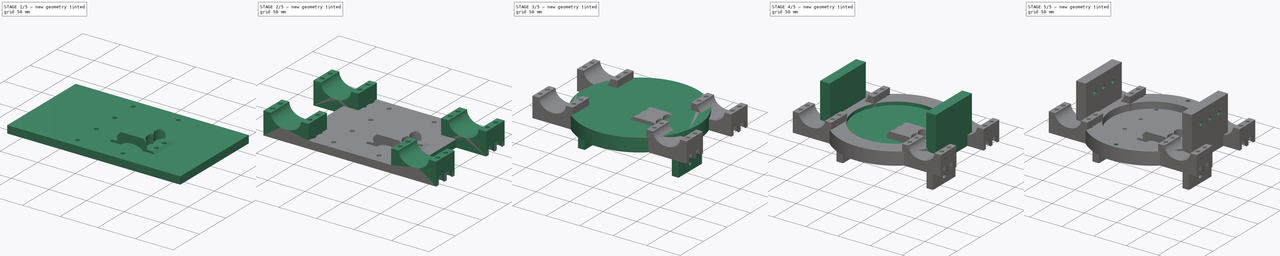
[diagram: build sequence overview — one tinted view per stage of 5, left to right]
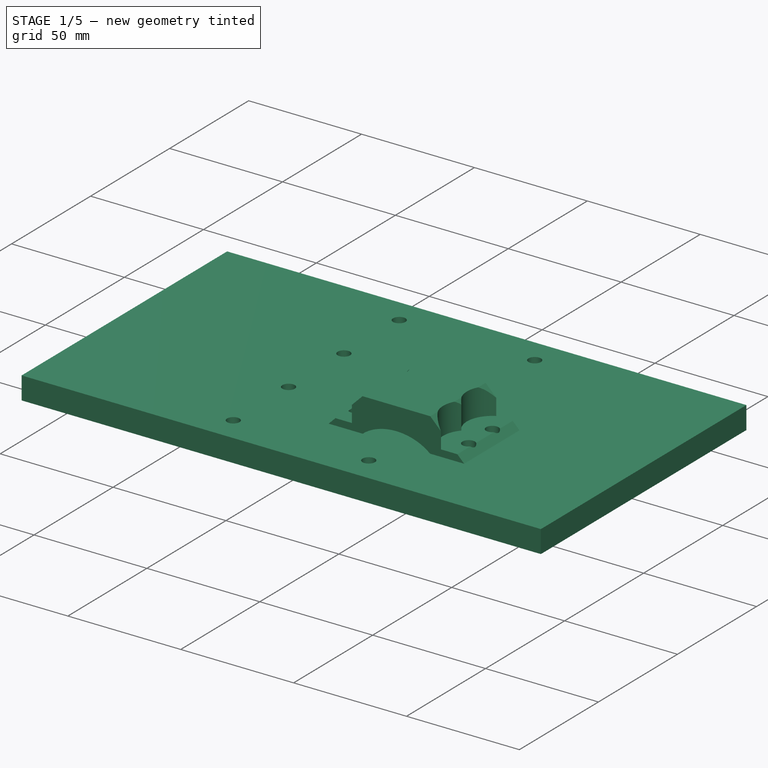
[diagram: stage 1 of 5 — iso view after this stage's code; geometry added in this stage tinted green]
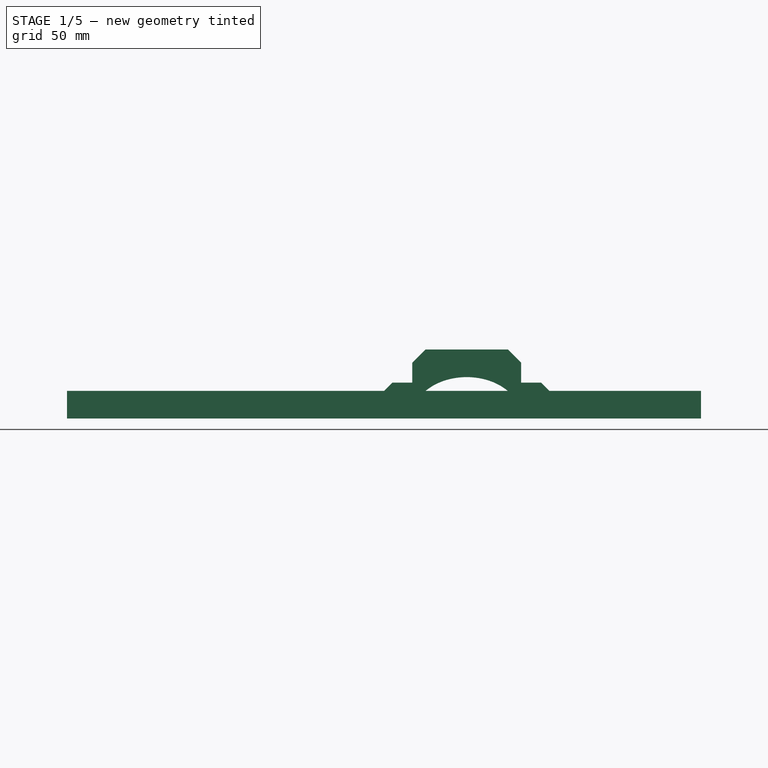
[diagram: stage 1 of 5 — front view after this stage's code; geometry added in this stage tinted green]
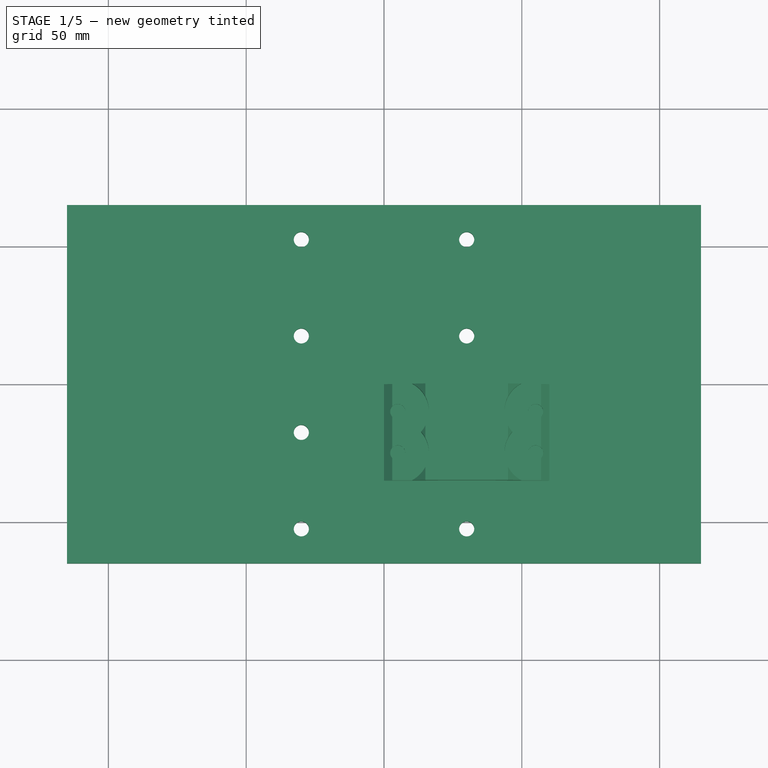
[diagram: stage 1 of 5 — top view after this stage's code; geometry added in this stage tinted green]
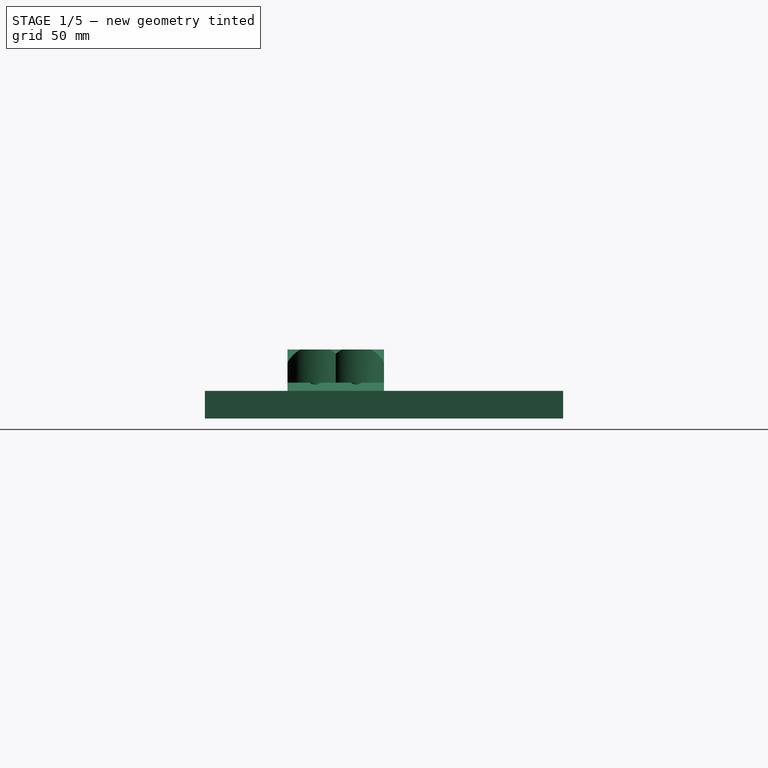
[diagram: stage 1 of 5 — right view after this stage's code; geometry added in this stage tinted green]
FCSTD DOCUMENT  (FreeCAD 1.0R39109 (Git))
Label: HeadlightMount
License: All rights reserved
LicenseURL: https://en.wikipedia.org/wiki/All_rights_reserved
objects: Sketcher::SketchObject×20, PartDesign::Hole×11, PartDesign::Pad×7, PartDesign::Body×5, PartDesign::SubtractiveCylinder×3, PartDesign::AdditiveCylinder×2, PartDesign::Pocket×2, App::DocumentObjectGroup×1
note: 120 computed .brp shape members not serialized (recipe doc carries the construction recipe); baked Part::Feature solids carry a one-line shape summary decoded from their .brp

FEATURE [PartDesign::Body] Body056  label="HeadlightHolderP3"
  AllowCompound = false
  Group = -> [Sketch043,Pad021,Sketch042,Hole020,Sketch044,Pad022,Sketch045,Hole021,Sketch046,Hole022,Sketch047,Pad023,Sketch048,Hole023]
  Origin = -> Origin057
  Tip = -> Hole023
FEATURE [App::DocumentObjectGroup] Group019  label="HeadlightMount"
  Group = -> [Body054,Body055,Body056]
FEATURE [Sketcher::SketchObject] Sketch
  ArcFitTolerance = 1e-06
  AttachmentSupport = -> [XY_Plane]
  FullyConstrained = false
  MakeInternals = false
  MapMode = 5
  sketch-geometry (4):
    g0: LineSegment StartX=-115 StartY=65 StartZ=0 EndX=-115 EndY=-65 EndZ=0
    g1: LineSegment StartX=-115 StartY=-65 StartZ=0 EndX=115 EndY=-65 EndZ=0
    g2: LineSegment StartX=115 StartY=-65 StartZ=0 EndX=115 EndY=65 EndZ=0
    g3: LineSegment StartX=115 StartY=65 StartZ=0 EndX=-115 EndY=65 EndZ=0
  constraints (8):
    c: Coincident(g0,g1)
    c: Coincident(g1,g2)
    c: Coincident(g2,g3)
    c: Coincident(g3,g0)
    c: Vertical(g0)
    c: Vertical(g2)
    c: Horizontal(g1)
    c: Horizontal(g3)
FEATURE [PartDesign::Pad] Pad
  Direction = (0,0,1)
  Length = 10
  Length2 = 10
  Profile = -> Sketch
  ReferenceAxis = -> Sketch [N_Axis]
  Refine = true
  Suppressed = false
  Type = 0
FEATURE [Sketcher::SketchObject] Sketch049
  ArcFitTolerance = 1e-06
  AttachmentSupport = -> [XY_Plane]
  FullyConstrained = false
  MakeInternals = false
  MapMode = 5
  sketch-geometry (8):
    g0: Circle CenterX=-30 CenterY=52.5 CenterZ=0 NormalX=0 NormalY=0 NormalZ=1 AngleXU=0 Radius=2.58214
    g1: Circle CenterX=-30 CenterY=17.5 CenterZ=0 NormalX=0 NormalY=0 NormalZ=1 AngleXU=0 Radius=2.63871
    g2: Circle CenterX=-30 CenterY=-17.5 CenterZ=0 NormalX=0 NormalY=0 NormalZ=1 AngleXU=0 Radius=2.65624
    g3: Circle CenterX=-30 CenterY=-52.5 CenterZ=0 NormalX=0 NormalY=0 NormalZ=1 AngleXU=0 Radius=2.60319
    g4: Circle CenterX=30 CenterY=-52.5 CenterZ=0 NormalX=0 NormalY=0 NormalZ=1 AngleXU=0 Radius=2.6842
    g5: Circle CenterX=30 CenterY=-17.5 CenterZ=0 NormalX=0 NormalY=0 NormalZ=1 AngleXU=0 Radius=2.58001
    g6: Circle CenterX=30 CenterY=17.5 CenterZ=0 NormalX=0 NormalY=0 NormalZ=1 AngleXU=0 Radius=2.61131
    g7: Circle CenterX=30 CenterY=52.5 CenterZ=0 NormalX=0 NormalY=0 NormalZ=1 AngleXU=0 Radius=2.75505
FEATURE [PartDesign::Hole] Hole
  BaseFeature = -> Pad
  CustomThreadClearance = 0
  Depth = 25
  DepthType = 0
  Diameter = 5.5
  DrillForDepth = false
  DrillPoint = 1
  DrillPointAngle = 118
  HoleCutCountersinkAngle = 90
  HoleCutCustomValues = false
  HoleCutDepth = 0
  HoleCutDiameter = 10.1
  HoleCutType = 0
  ModelThread = false
  Profile = -> Sketch049
  Refine = true
  Reversed = true
  Suppressed = false
  Tapered = false
  TaperedAngle = 90
  ThreadClass = 0
  ThreadDepth = 25
  ThreadDepthType = 0
  ThreadDirection = 0
  ThreadFit = 0
  ThreadSize = 13
  ThreadType = 1
  Threaded = false
  UseCustomThreadClearance = false
FEATURE [PartDesign::Body] Body  label="ForkMountClamp"
  AllowCompound = false
  Group = -> [Sketch,Pad,Sketch049,Hole,Sketch050,Sketch051,Pad024,Sketch052,Hole024,Pocket]
  Origin = -> Origin
  Placement = pos=(0,0,10) rot=(0,0,1;0rad)
  Tip = -> Pocket
FEATURE [Sketcher::SketchObject] Sketch054
  ArcFitTolerance = 1e-06
  AttachmentSupport = -> [XZ_Plane058]
  FullyConstrained = false
  MakeInternals = false
  MapMode = 5
  Placement = pos=(0,0,0) rot=(1,0,0;1.5708rad)
  sketch-geometry (15):
    g0: LineSegment StartX=60 StartY=0 StartZ=0 EndX=60 EndY=25 EndZ=0
    g1: LineSegment StartX=60 StartY=25 StartZ=0 EndX=0 EndY=25 EndZ=0
    g2: LineSegment StartX=0 StartY=0 StartZ=0 EndX=0 EndY=25 EndZ=0
    g3: ArcOfEllipse CenterX=30 CenterY=0 CenterZ=0 NormalX=0 NormalY=0 NormalZ=1 MajorRadius=20 MinorRadius=15 AngleXU=-3.14159 StartAngle=3.14159 EndAngle=4.71239
    g4: LineSegment [constr] StartX=10 StartY=0 StartZ=0 EndX=50 EndY=0 EndZ=0
    g5: GeomPoint [constr] X=16.7712 Y=0 Z=0
    g6: GeomPoint [constr] X=43.2288 Y=0 Z=0
    g7: ArcOfEllipse CenterX=30 CenterY=0 CenterZ=0 NormalX=0 NormalY=0 NormalZ=1 MajorRadius=20 MinorRadius=15 AngleXU=-3.14159 StartAngle=4.71239 EndAngle=6.28318
    g8: LineSegment [constr] StartX=10 StartY=0 StartZ=0 EndX=50 EndY=0 EndZ=0
    g9: GeomPoint [constr] X=16.7712 Y=0 Z=0
    g10: GeomPoint [constr] X=43.2288 Y=0 Z=0
    g11: LineSegment [constr] StartX=30 StartY=-15 StartZ=0 EndX=30 EndY=15 EndZ=0
    g12: LineSegment [constr] StartX=30 StartY=-15 StartZ=0 EndX=30 EndY=15 EndZ=0
    g13: LineSegment StartX=10 StartY=4.60769e-06 StartZ=0 EndX=0 EndY=0 EndZ=0
    g14: LineSegment StartX=50 StartY=-9.80385e-06 StartZ=0 EndX=60 EndY=0 EndZ=0
  constraints (16):
    c: Coincident(g1,g0)
    c: Coincident(g2,g1)
    c: InternalAlignment(g4,g3)
    c: InternalAlignment(g11,g3)
    c: InternalAlignment(g5,g3)
    c: InternalAlignment(g6,g3)
    c: InternalAlignment(g8,g7)
    c: InternalAlignment(g12,g7)
    c: InternalAlignment(g9,g7)
    c: InternalAlignment(g10,g7)
    c: PointOnObject(g4,g7)
    c: Coincident(g7,g3)
    c: Coincident(g13,g7)
    c: Coincident(g13,g2)
    c: Coincident(g14,g3)
    c: Coincident(g14,g0)
FEATURE [PartDesign::Pad] Pad025
  Direction = (0,-1,2e-16)
  Length = 35
  Length2 = 10
  Placement = pos=(0,0,0) rot=(1,0,0;1.5708rad)
  Profile = -> Sketch054
  ReferenceAxis = -> Sketch054 [N_Axis]
  Refine = true
  Suppressed = false
  Type = 0
FEATURE [Sketcher::SketchObject] Sketch055
  ArcFitTolerance = 1e-06
  AttachmentOffset = pos=(0,0,25) rot=(0,0,1;0rad)
  AttachmentSupport = -> [XY_Plane059]
  FullyConstrained = false
  MakeInternals = false
  MapMode = 5
  Placement = pos=(0,0,25) rot=(0,0,1;0rad)
  sketch-geometry (4):
    g0: Circle CenterX=55 CenterY=-25 CenterZ=0 NormalX=0 NormalY=0 NormalZ=1 AngleXU=0 Radius=2.53144
    g1: Circle CenterX=55 CenterY=-10 CenterZ=0 NormalX=0 NormalY=0 NormalZ=1 AngleXU=0 Radius=3.07714
    g2: Circle CenterX=5 CenterY=-25 CenterZ=0 NormalX=0 NormalY=0 NormalZ=1 AngleXU=0 Radius=2.73792
    g3: Circle CenterX=5 CenterY=-10 CenterZ=0 NormalX=0 NormalY=0 NormalZ=1 AngleXU=0 Radius=2.81587
FEATURE [PartDesign::Hole] Hole025
  BaseFeature = -> Pad025
  CustomThreadClearance = 0
  Depth = 25
  DepthType = 0
  Diameter = 5.5
  DrillForDepth = false
  DrillPoint = 1
  DrillPointAngle = 118
  HoleCutCountersinkAngle = 90
  HoleCutCustomValues = false
  HoleCutDepth = 12
  HoleCutDiameter = 22.6
  HoleCutType = 1
  ModelThread = false
  Placement = pos=(0,0,0) rot=(1,0,0;1.5708rad)
  Profile = -> Sketch055
  Refine = true
  Suppressed = false
  Tapered = false
  TaperedAngle = 90
  ThreadClass = 0
  ThreadDepth = 25
  ThreadDepthType = 0
  ThreadDirection = 0
  ThreadFit = 0
  ThreadSize = 13
  ThreadType = 1
  Threaded = false
  UseCustomThreadClearance = false
FEATURE [Sketcher::SketchObject] Sketch056
  ArcFitTolerance = 1e-06
  AttachmentSupport = -> [XZ_Plane058]
  FullyConstrained = false
  MakeInternals = false
  MapMode = 5
  Placement = pos=(0,0,0) rot=(1,0,0;1.5708rad)
  sketch-geometry (6):
    g0: LineSegment StartX=60 StartY=10 StartZ=0 EndX=40 EndY=30 EndZ=0
    g1: LineSegment StartX=60 StartY=10 StartZ=0 EndX=60 EndY=30 EndZ=0
    g2: LineSegment StartX=60 StartY=30 StartZ=0 EndX=40 EndY=30 EndZ=0
    g3: LineSegment StartX=20 StartY=30 StartZ=0 EndX=0 EndY=10 EndZ=0
    g4: LineSegment StartX=0 StartY=10 StartZ=0 EndX=0 EndY=30 EndZ=0
    g5: LineSegment StartX=0 StartY=30 StartZ=0 EndX=20 EndY=30 EndZ=0
  constraints (11):
    c: Coincident(g1,g0)
    c: Vertical(g1)
    c: Coincident(g2,g1)
    c: Coincident(g2,g0)
    c: Horizontal(g2)
    c: PointOnObject(g3,g-2)
    c: Coincident(g4,g3)
    c: Vertical(g4)
    c: Coincident(g5,g4)
    c: Coincident(g5,g3)
    c: Horizontal(g5)
FEATURE [PartDesign::Pocket] Pocket001
  BaseFeature = -> Hole025
  Direction = (0,1,-2e-16)
  Length = 48
  Length2 = 5
  Placement = pos=(0,0,0) rot=(1,0,0;1.5708rad)
  Profile = -> Sketch056
  ReferenceAxis = -> Sketch056 [N_Axis]
  Refine = true
  Reversed = true
  Suppressed = false
  Type = 0
FEATURE [PartDesign::Body] Body057  label="BackClamp"
  AllowCompound = false
  Group = -> [Sketch054,Pad025,Sketch055,Hole025,Sketch056,Pocket001]
  Origin = -> Origin058
  Placement = pos=(55,65,40) rot=(0,0,1;0rad)
  Tip = -> Pocket001
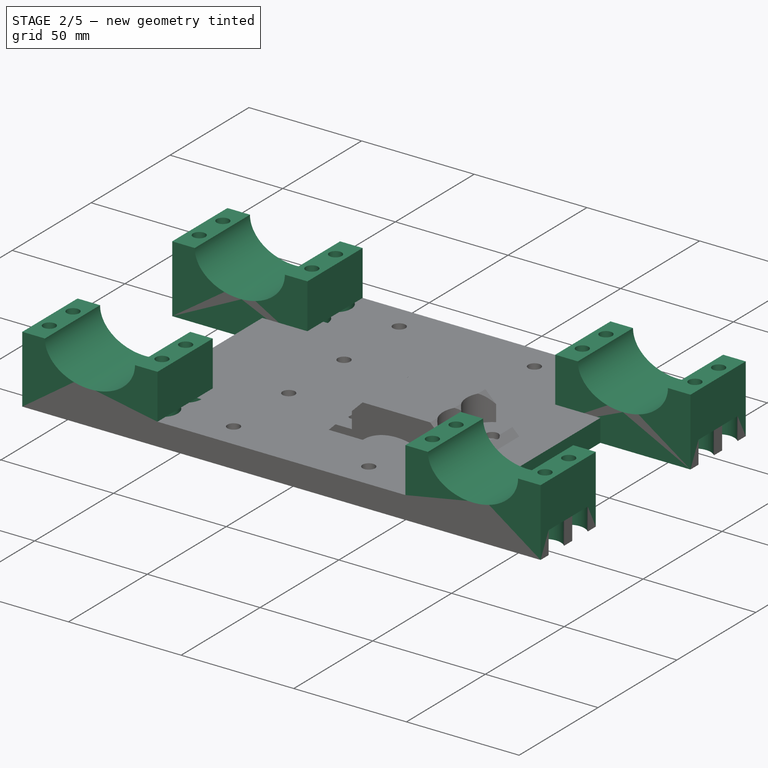
[diagram: stage 2 of 5 — iso view after this stage's code; geometry added in this stage tinted green]
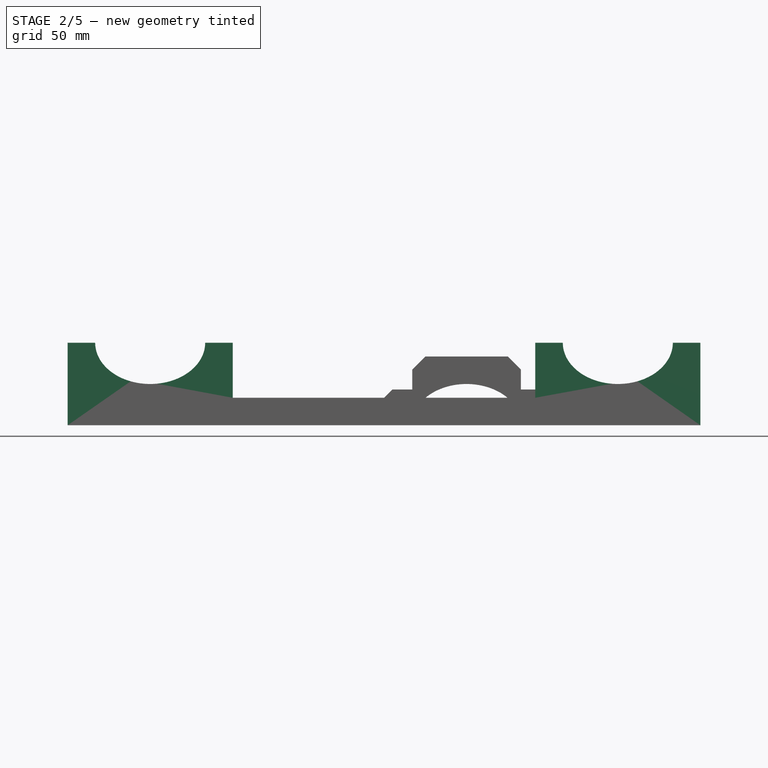
[diagram: stage 2 of 5 — front view after this stage's code; geometry added in this stage tinted green]
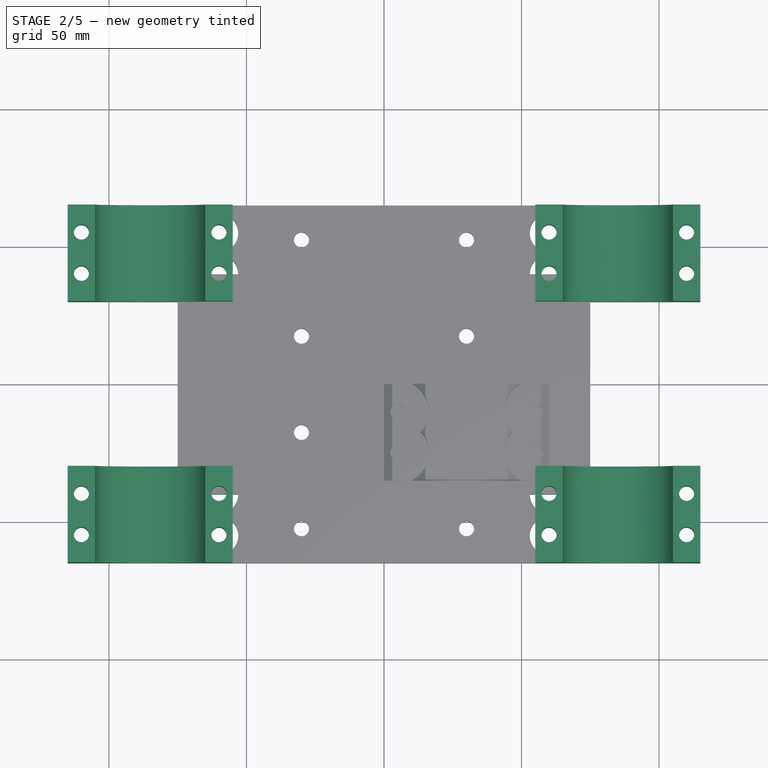
[diagram: stage 2 of 5 — top view after this stage's code; geometry added in this stage tinted green]
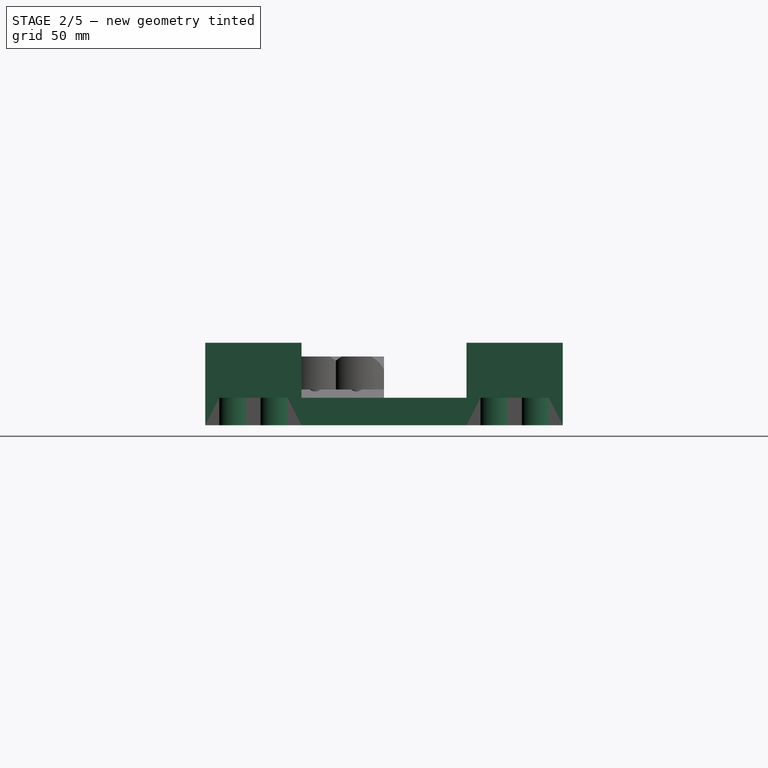
[diagram: stage 2 of 5 — right view after this stage's code; geometry added in this stage tinted green]
FEATURE [PartDesign::Body] Body055  label="HeadlightHolderP2"
  AllowCompound = false
  Group = -> [Cylinder057,Cylinder058,Sketch041,Hole019]
  Origin = -> Origin056
  Placement = pos=(0,0,-105) rot=(0,0,1;0rad)
  Tip = -> Hole019
FEATURE [Sketcher::SketchObject] Sketch042  label="FronHoleFootprint001"
  ArcFitTolerance = 0
  FullyConstrained = false
  MakeInternals = false
  MapMode = 5
  sketch-geometry (8):
    g0: Circle CenterX=-30 CenterY=52.5 CenterZ=0 NormalX=0 NormalY=0 NormalZ=1 AngleXU=0 Radius=2.75
    g1: Circle CenterX=30 CenterY=52.5 CenterZ=0 NormalX=0 NormalY=0 NormalZ=1 AngleXU=0 Radius=2.75
    g2: Circle CenterX=-30 CenterY=17.5 CenterZ=0 NormalX=0 NormalY=0 NormalZ=1 AngleXU=0 Radius=2.75
    g3: Circle CenterX=30 CenterY=17.5 CenterZ=0 NormalX=0 NormalY=0 NormalZ=1 AngleXU=0 Radius=2.75
    g4: Circle CenterX=-30 CenterY=-17.5 CenterZ=0 NormalX=0 NormalY=0 NormalZ=1 AngleXU=0 Radius=2.75
    g5: Circle CenterX=30 CenterY=-17.5 CenterZ=0 NormalX=0 NormalY=0 NormalZ=1 AngleXU=0 Radius=2.75
    g6: Circle CenterX=-30 CenterY=-52.5 CenterZ=0 NormalX=0 NormalY=0 NormalZ=1 AngleXU=0 Radius=2.75
    g7: Circle CenterX=30 CenterY=-52.5 CenterZ=0 NormalX=0 NormalY=0 NormalZ=1 AngleXU=0 Radius=2.75
  constraints (9):
    c: Diameter(g0) = 5.5
    c: Equal(g0, g1-g7) x7
    c: DistanceY(g2,g0) = 35
    c: DistanceY(g4,g2) = 35
    c: DistanceY(g6,g4) = 35
    c: DistanceY(g3,g1) = 35
    c: DistanceY(g5,g3) = 35
    c: DistanceY(g7,g5) = 35
    c: DistanceX(g6,g7) = 60
FEATURE [Sketcher::SketchObject] Sketch043
  ArcFitTolerance = 1e-06
  AttachmentSupport = -> [XY_Plane058]
  FullyConstrained = false
  MakeInternals = false
  MapMode = 5
  sketch-geometry (12):
    g0: LineSegment StartX=-75 StartY=40 StartZ=0 EndX=-75 EndY=-40 EndZ=0
    g1: LineSegment StartX=-75 StartY=-40 StartZ=0 EndX=75 EndY=-40 EndZ=0
    g2: LineSegment StartX=75 StartY=-40 StartZ=0 EndX=75 EndY=40 EndZ=0
    g3: LineSegment StartX=75 StartY=40 StartZ=0 EndX=-75 EndY=40 EndZ=0
    g4: LineSegment StartX=-40 StartY=65 StartZ=0 EndX=-40 EndY=40 EndZ=0
    g5: LineSegment StartX=-40 StartY=40 StartZ=0 EndX=40 EndY=40 EndZ=0
    g6: LineSegment StartX=40 StartY=40 StartZ=0 EndX=40 EndY=65 EndZ=0
    g7: LineSegment StartX=40 StartY=65 StartZ=0 EndX=-40 EndY=65 EndZ=0
    g8: LineSegment StartX=-40 StartY=-40 StartZ=0 EndX=-40 EndY=-65 EndZ=0
    g9: LineSegment StartX=-40 StartY=-65 StartZ=0 EndX=40 EndY=-65 EndZ=0
    g10: LineSegment StartX=40 StartY=-65 StartZ=0 EndX=40 EndY=-40 EndZ=0
    g11: LineSegment StartX=40 StartY=-40 StartZ=0 EndX=-40 EndY=-40 EndZ=0
  constraints (25):
    c: Coincident(g0,g1)
    c: Coincident(g1,g2)
    c: Coincident(g2,g3)
    c: Coincident(g3,g0)
    c: Vertical(g0)
    c: Vertical(g2)
    c: Horizontal(g1)
    c: Horizontal(g3)
    c: Coincident(g4,g5)
    c: Coincident(g5,g6)
    c: Coincident(g6,g7)
    c: Coincident(g7,g4)
    c: Vertical(g4)
    c: Vertical(g6)
    c: Horizontal(g5)
    c: Horizontal(g7)
    c: Coincident(g8,g9)
    c: Coincident(g9,g10)
    c: Coincident(g10,g11)
    c: Coincident(g11,g8)
    c: Vertical(g8)
    c: Vertical(g10)
    c: Horizontal(g9)
    c: Horizontal(g11)
    c: PointOnObject(g8,g1)
FEATURE [PartDesign::Pad] Pad021
  Direction = (0,0,1)
  Length = 10
  Length2 = 10
  Profile = -> Sketch043
  ReferenceAxis = -> Sketch043 [N_Axis]
  Refine = true
  Suppressed = false
  Type = 0
FEATURE [PartDesign::Hole] Hole020
  BaseFeature = -> Pad021
  CustomThreadClearance = 0
  Depth = 25
  DepthType = 0
  Diameter = 5.8
  DrillForDepth = false
  DrillPoint = 1
  DrillPointAngle = 118
  HoleCutCountersinkAngle = 90
  HoleCutCustomValues = false
  HoleCutDepth = 5.4
  HoleCutDiameter = 11.2
  HoleCutType = 1
  ModelThread = false
  Profile = -> Sketch042
  Refine = true
  Reversed = true
  Suppressed = false
  Tapered = false
  TaperedAngle = 90
  ThreadClass = 0
  ThreadDepth = 25
  ThreadDepthType = 0
  ThreadDirection = 0
  ThreadFit = 2
  ThreadSize = 13
  ThreadType = 1
  Threaded = false
  UseCustomThreadClearance = false
FEATURE [Sketcher::SketchObject] Sketch050
  ArcFitTolerance = 1e-06
  AttachmentSupport = -> [XY_Plane]
  FullyConstrained = false
  MakeInternals = false
  MapMode = 5
  sketch-geometry (8):
    g0: LineSegment StartX=-115 StartY=30 StartZ=0 EndX=-115 EndY=-30 EndZ=0
    g1: LineSegment StartX=-115 StartY=-30 StartZ=0 EndX=-50 EndY=-30 EndZ=0
    g2: LineSegment StartX=-50 StartY=-30 StartZ=0 EndX=-50 EndY=30 EndZ=0
    g3: LineSegment StartX=-50 StartY=30 StartZ=0 EndX=-115 EndY=30 EndZ=0
    g4: LineSegment StartX=50 StartY=30 StartZ=0 EndX=50 EndY=-30 EndZ=0
    g5: LineSegment StartX=50 StartY=-30 StartZ=0 EndX=115 EndY=-30 EndZ=0
    g6: LineSegment StartX=115 StartY=-30 StartZ=0 EndX=115 EndY=30 EndZ=0
    g7: LineSegment StartX=115 StartY=30 StartZ=0 EndX=50 EndY=30 EndZ=0
  constraints (16):
    c: Coincident(g0,g1)
    c: Coincident(g1,g2)
    c: Coincident(g2,g3)
    c: Coincident(g3,g0)
    c: Vertical(g0)
    c: Vertical(g2)
    c: Horizontal(g1)
    c: Horizontal(g3)
    c: Coincident(g4,g5)
    c: Coincident(g5,g6)
    c: Coincident(g6,g7)
    c: Coincident(g7,g4)
    c: Vertical(g4)
    c: Vertical(g6)
    c: Horizontal(g5)
    c: Horizontal(g7)
FEATURE [Sketcher::SketchObject] Sketch051
  ArcFitTolerance = 1e-06
  AttachmentOffset = pos=(0,0,-65) rot=(0,0,1;0rad)
  AttachmentSupport = -> [XZ_Plane]
  FullyConstrained = false
  MakeInternals = false
  MapMode = 5
  Placement = pos=(0,65,-1.44e-14) rot=(1,0,0;1.5708rad)
  sketch-geometry (30):
    g0: LineSegment StartX=-115 StartY=30 StartZ=0 EndX=-115 EndY=10 EndZ=0
    g1: LineSegment StartX=-115 StartY=10 StartZ=0 EndX=-55 EndY=10 EndZ=0
    g2: LineSegment StartX=-55 StartY=30 StartZ=0 EndX=-55 EndY=10 EndZ=0
    g3: ArcOfEllipse CenterX=-85 CenterY=30 CenterZ=0 NormalX=0 NormalY=0 NormalZ=1 MajorRadius=20 MinorRadius=15 AngleXU=0 StartAngle=3.14159 EndAngle=4.71239
    g4: LineSegment [constr] StartX=-65 StartY=30 StartZ=0 EndX=-105 EndY=30 EndZ=0
    g5: GeomPoint [constr] X=-71.7712 Y=30 Z=0
    g6: GeomPoint [constr] X=-98.2288 Y=30 Z=0
    g7: ArcOfEllipse CenterX=-85 CenterY=30 CenterZ=0 NormalX=0 NormalY=0 NormalZ=1 MajorRadius=20 MinorRadius=15 AngleXU=0 StartAngle=4.71239 EndAngle=6.28318
    g8: LineSegment [constr] StartX=-65 StartY=30 StartZ=0 EndX=-105 EndY=30 EndZ=0
    g9: GeomPoint [constr] X=-71.7712 Y=30 Z=0
    g10: GeomPoint [constr] X=-98.2288 Y=30 Z=0
    g11: LineSegment [constr] StartX=-85 StartY=45 StartZ=0 EndX=-85 EndY=15 EndZ=0
    g12: LineSegment [constr] StartX=-85 StartY=45 StartZ=0 EndX=-85 EndY=15 EndZ=0
    g13: LineSegment StartX=-65 StartY=30 StartZ=0 EndX=-55 EndY=30 EndZ=0
    g14: LineSegment StartX=-105 StartY=30 StartZ=0 EndX=-115 EndY=30 EndZ=0
    g15: LineSegment StartX=55 StartY=30 StartZ=0 EndX=55 EndY=10 EndZ=0
    g16: LineSegment StartX=55 StartY=10 StartZ=0 EndX=115 EndY=10 EndZ=0
    g17: LineSegment StartX=115 StartY=30 StartZ=0 EndX=115 EndY=10 EndZ=0
    g18: ArcOfEllipse CenterX=85 CenterY=30 CenterZ=0 NormalX=0 NormalY=0 NormalZ=1 MajorRadius=20 MinorRadius=15 AngleXU=0 StartAngle=3.14159 EndAngle=4.71239
    g19: LineSegment [constr] StartX=105 StartY=30 StartZ=0 EndX=65 EndY=30 EndZ=0
    g20: GeomPoint [constr] X=98.2288 Y=30 Z=0
    g21: GeomPoint [constr] X=71.7712 Y=30 Z=0
    g22: ArcOfEllipse CenterX=85 CenterY=30 CenterZ=0 NormalX=0 NormalY=0 NormalZ=1 MajorRadius=20 MinorRadius=15 AngleXU=0 StartAngle=4.71239 EndAngle=6.28318
    g23: LineSegment [constr] StartX=105 StartY=30 StartZ=0 EndX=65 EndY=30 EndZ=0
    g24: GeomPoint [constr] X=98.2288 Y=30 Z=0
    g25: GeomPoint [constr] X=71.7712 Y=30 Z=0
    g26: LineSegment [constr] StartX=85 StartY=45 StartZ=0 EndX=85 EndY=15 EndZ=0
    g27: LineSegment [constr] StartX=85 StartY=45 StartZ=0 EndX=85 EndY=15 EndZ=0
    g28: LineSegment StartX=105 StartY=30 StartZ=0 EndX=115 EndY=30 EndZ=0
    g29: LineSegment StartX=65 StartY=30 StartZ=0 EndX=55 EndY=30 EndZ=0
  constraints (42):
    c: Vertical(g0)
    c: Coincident(g1,g0)
    c: Horizontal(g1)
    c: Coincident(g2,g1)
    c: Vertical(g2)
    c: InternalAlignment(g4,g3)
    c: InternalAlignment(g11,g3)
    c: InternalAlignment(g5,g3)
    c: InternalAlignment(g6,g3)
    c: InternalAlignment(g8,g7)
    c: InternalAlignment(g12,g7)
    c: InternalAlignment(g9,g7)
    c: InternalAlignment(g10,g7)
    c: PointOnObject(g4,g7)
    c: Coincident(g7,g3)
    c: Coincident(g13,g7)
    c: Coincident(g13,g2)
    c: Horizontal(g13)
    c: Coincident(g14,g3)
    c: Coincident(g14,g0)
    c: Horizontal(g14)
    c: Vertical(g15)
    c: Coincident(g16,g15)
    c: Horizontal(g16)
    c: Coincident(g17,g16)
    c: Vertical(g17)
    c: InternalAlignment(g19,g18)
    c: InternalAlignment(g26,g18)
    c: InternalAlignment(g20,g18)
    c: InternalAlignment(g21,g18)
    c: InternalAlignment(g23,g22)
    c: InternalAlignment(g27,g22)
    c: InternalAlignment(g24,g22)
    c: InternalAlignment(g25,g22)
    c: PointOnObject(g19,g22)
    c: Coincident(g22,g18)
    c: Coincident(g28,g22)
    c: Coincident(g28,g17)
    c: Horizontal(g28)
    c: Coincident(g29,g18)
    c: Coincident(g29,g15)
    c: Horizontal(g29)
FEATURE [PartDesign::Pad] Pad024
  BaseFeature = -> Hole
  Direction = (0,-1,2e-16)
  Length = 130
  Length2 = 10
  Profile = -> Sketch051
  ReferenceAxis = -> Sketch051 [N_Axis]
  Refine = true
  Suppressed = false
  Type = 0
FEATURE [Sketcher::SketchObject] Sketch052
  ArcFitTolerance = 1e-06
  AttachmentSupport = -> [XY_Plane]
  FullyConstrained = false
  MakeInternals = false
  MapMode = 5
  sketch-geometry (16):
    g0: Circle CenterX=-60 CenterY=-55 CenterZ=0 NormalX=0 NormalY=0 NormalZ=1 AngleXU=0 Radius=2.53144
    g1: Circle CenterX=-60 CenterY=-40 CenterZ=0 NormalX=0 NormalY=0 NormalZ=1 AngleXU=0 Radius=3.07714
    g2: Circle CenterX=-110 CenterY=-55 CenterZ=0 NormalX=0 NormalY=0 NormalZ=1 AngleXU=0 Radius=2.73792
    g3: Circle CenterX=-110 CenterY=-40 CenterZ=0 NormalX=0 NormalY=0 NormalZ=1 AngleXU=0 Radius=2.81587
    g4: Circle CenterX=-60 CenterY=40 CenterZ=0 NormalX=0 NormalY=0 NormalZ=1 AngleXU=0 Radius=2.53144
    g5: Circle CenterX=-60 CenterY=55 CenterZ=0 NormalX=0 NormalY=0 NormalZ=1 AngleXU=0 Radius=3.07714
    g6: Circle CenterX=-110 CenterY=40 CenterZ=0 NormalX=0 NormalY=0 NormalZ=1 AngleXU=0 Radius=2.73792
    g7: Circle CenterX=-110 CenterY=55 CenterZ=0 NormalX=0 NormalY=0 NormalZ=1 AngleXU=0 Radius=2.81587
    g8: Circle CenterX=110 CenterY=-55 CenterZ=0 NormalX=0 NormalY=0 NormalZ=1 AngleXU=0 Radius=2.53144
    g9: Circle CenterX=110 CenterY=-40 CenterZ=0 NormalX=0 NormalY=0 NormalZ=1 AngleXU=0 Radius=3.07714
    g10: Circle CenterX=60 CenterY=-55 CenterZ=0 NormalX=0 NormalY=0 NormalZ=1 AngleXU=0 Radius=2.73792
    g11: Circle CenterX=60 CenterY=-40 CenterZ=0 NormalX=0 NormalY=0 NormalZ=1 AngleXU=0 Radius=2.81587
    g12: Circle CenterX=110 CenterY=40 CenterZ=0 NormalX=0 NormalY=0 NormalZ=1 AngleXU=0 Radius=2.53144
    g13: Circle CenterX=110 CenterY=55 CenterZ=0 NormalX=0 NormalY=0 NormalZ=1 AngleXU=0 Radius=3.07714
    g14: Circle CenterX=60 CenterY=40 CenterZ=0 NormalX=0 NormalY=0 NormalZ=1 AngleXU=0 Radius=2.73792
    g15: Circle CenterX=60 CenterY=55 CenterZ=0 NormalX=0 NormalY=0 NormalZ=1 AngleXU=0 Radius=2.81587
FEATURE [PartDesign::Hole] Hole024
  BaseFeature = -> Pad024
  CustomThreadClearance = 0
  Depth = 40
  DepthType = 0
  Diameter = 5.5
  DrillForDepth = false
  DrillPoint = 1
  DrillPointAngle = 118
  HoleCutCountersinkAngle = 90
  HoleCutCustomValues = false
  HoleCutDepth = 10
  HoleCutDiameter = 14
  HoleCutType = 1
  ModelThread = false
  Profile = -> Sketch052
  Refine = true
  Reversed = true
  Suppressed = false
  Tapered = false
  TaperedAngle = 90
  ThreadClass = 0
  ThreadDepth = 40
  ThreadDepthType = 0
  ThreadDirection = 0
  ThreadFit = 0
  ThreadSize = 13
  ThreadType = 1
  Threaded = false
  UseCustomThreadClearance = false
FEATURE [PartDesign::Pocket] Pocket
  BaseFeature = -> Hole024
  Direction = (0,0,-1)
  Length = 84
  Length2 = 5
  Profile = -> Sketch050
  ReferenceAxis = -> Sketch050 [N_Axis]
  Refine = true
  Reversed = true
  Suppressed = false
  Type = 0
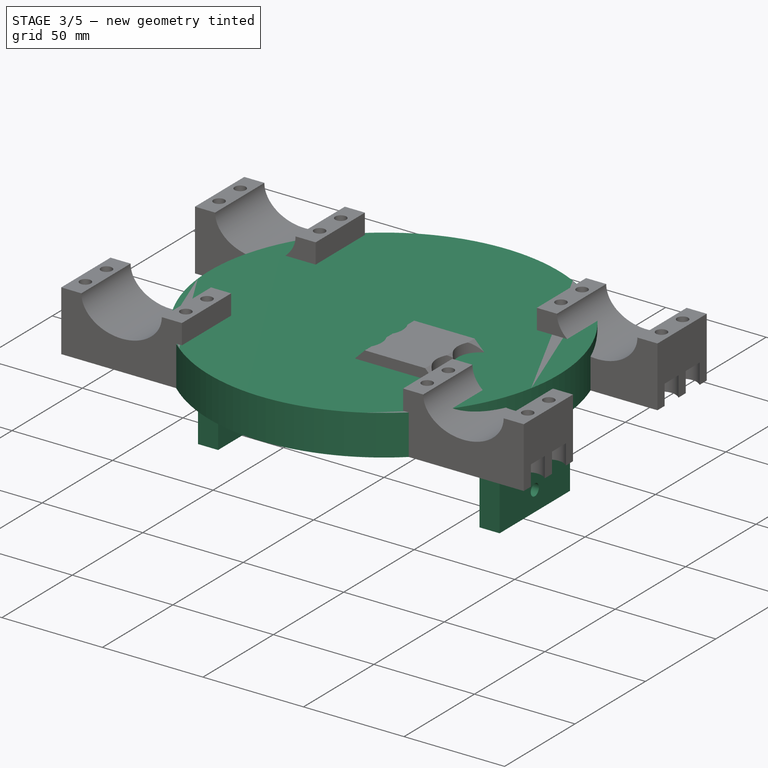
[diagram: stage 3 of 5 — iso view after this stage's code; geometry added in this stage tinted green]
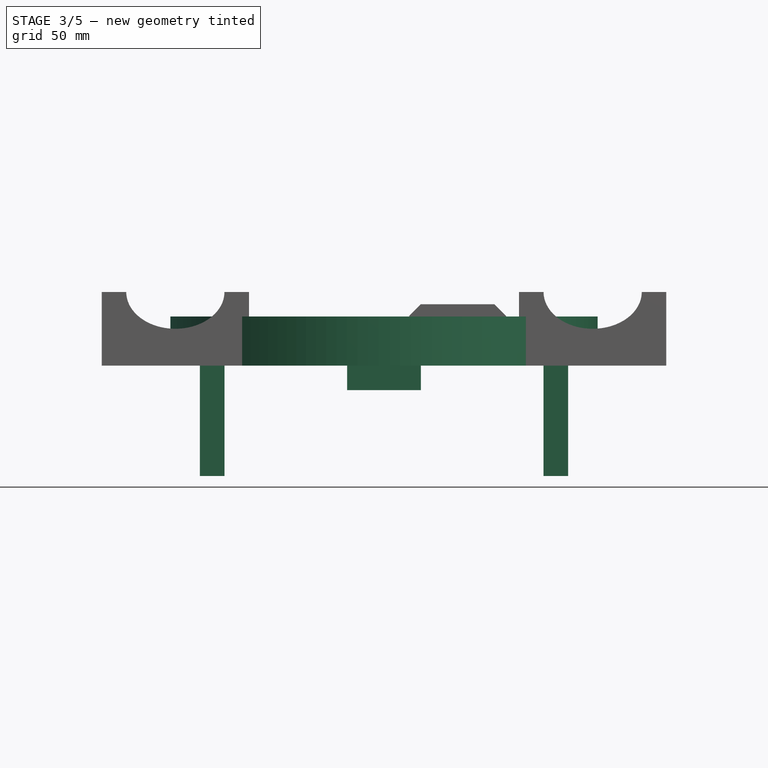
[diagram: stage 3 of 5 — front view after this stage's code; geometry added in this stage tinted green]
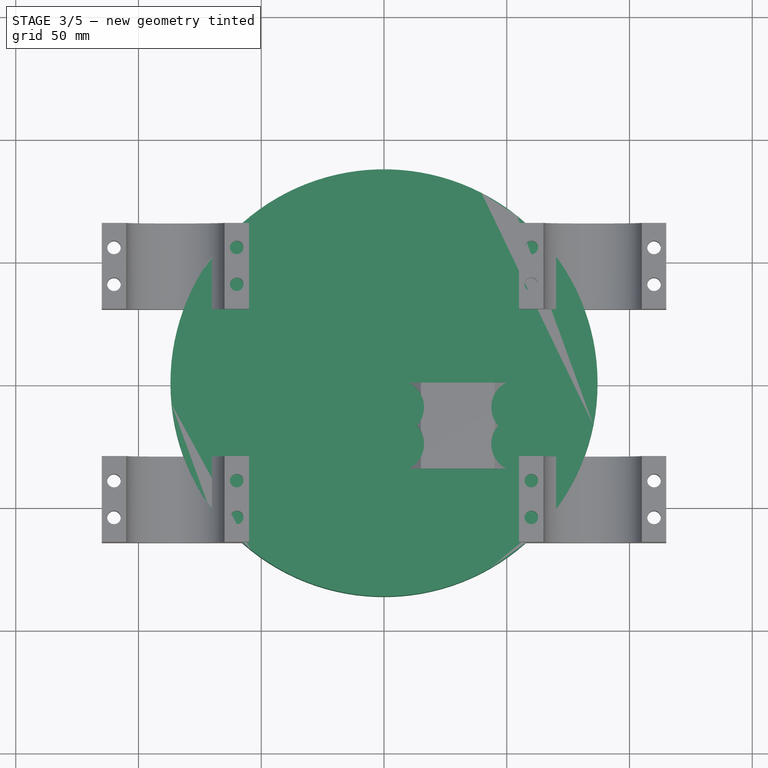
[diagram: stage 3 of 5 — top view after this stage's code; geometry added in this stage tinted green]
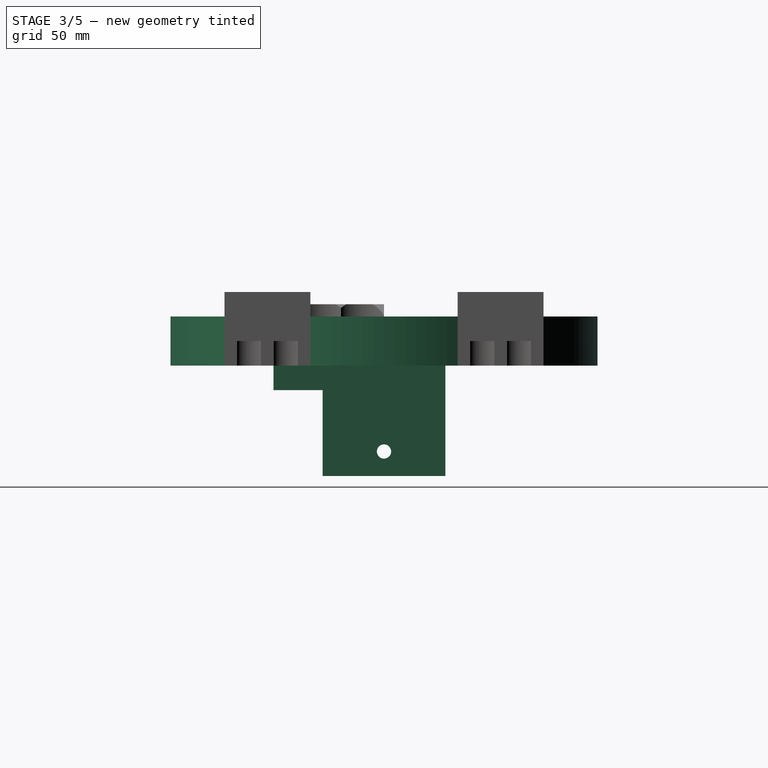
[diagram: stage 3 of 5 — right view after this stage's code; geometry added in this stage tinted green]
FEATURE [PartDesign::AdditiveCylinder] Cylinder054  label="HousingOuterRegion"
  Angle = 360
  AttacherType = Attacher::AttachEngine3D
  FirstAngle = 0
  Height = 20
  Radius = 87
  Refine = true
  SecondAngle = 0
  Suppressed = false
FEATURE [Sketcher::SketchObject] Sketch044
  ArcFitTolerance = 1e-06
  AttachmentSupport = -> [XY_Plane058]
  FullyConstrained = false
  MakeInternals = false
  MapMode = 5
  sketch-geometry (8):
    g0: LineSegment StartX=-65 StartY=-25 StartZ=0 EndX=-65 EndY=25 EndZ=0
    g1: LineSegment StartX=-65 StartY=25 StartZ=0 EndX=-75 EndY=25 EndZ=0
    g2: LineSegment StartX=-75 StartY=25 StartZ=0 EndX=-75 EndY=-25 EndZ=0
    g3: LineSegment StartX=-75 StartY=-25 StartZ=0 EndX=-65 EndY=-25 EndZ=0
    g4: LineSegment StartX=65 StartY=25 StartZ=0 EndX=65 EndY=-25 EndZ=0
    g5: LineSegment StartX=65 StartY=-25 StartZ=0 EndX=75 EndY=-25 EndZ=0
    g6: LineSegment StartX=75 StartY=-25 StartZ=0 EndX=75 EndY=25 EndZ=0
    g7: LineSegment StartX=75 StartY=25 StartZ=0 EndX=65 EndY=25 EndZ=0
  constraints (16):
    c: Coincident(g0,g1)
    c: Coincident(g1,g2)
    c: Coincident(g2,g3)
    c: Coincident(g3,g0)
    c: Vertical(g0)
    c: Vertical(g2)
    c: Horizontal(g1)
    c: Horizontal(g3)
    c: Coincident(g4,g5)
    c: Coincident(g5,g6)
    c: Coincident(g6,g7)
    c: Coincident(g7,g4)
    c: Vertical(g4)
    c: Vertical(g6)
    c: Horizontal(g5)
    c: Horizontal(g7)
FEATURE [PartDesign::Pad] Pad022
  BaseFeature = -> Hole020
  Direction = (0,0,1)
  Length = 45
  Length2 = 10
  Profile = -> Sketch044
  ReferenceAxis = -> Sketch044 [N_Axis]
  Refine = true
  Reversed = true
  Suppressed = false
  Type = 0
FEATURE [Sketcher::SketchObject] Sketch045
  ArcFitTolerance = 1e-06
  AttachmentSupport = -> [YZ_Plane057]
  FullyConstrained = false
  MakeInternals = false
  MapMode = 5
  Placement = pos=(0,0,0) rot=(0.57735,0.57735,0.57735;2.0944rad)
  sketch-geometry (1):
    g0: Circle CenterX=0 CenterY=-35 CenterZ=0 NormalX=0 NormalY=0 NormalZ=1 AngleXU=0 Radius=2.77182
  constraints (1):
    c: PointOnObject(g0,g-2)
FEATURE [PartDesign::Hole] Hole021
  BaseFeature = -> Pad022
  CustomThreadClearance = 0
  Depth = 416.066
  DepthType = 1
  Diameter = 5.8
  DrillForDepth = false
  DrillPoint = 1
  DrillPointAngle = 118
  HoleCutCountersinkAngle = 90
  HoleCutCustomValues = false
  HoleCutDepth = 0
  HoleCutDiameter = 6.1
  HoleCutType = 0
  ModelThread = false
  Profile = -> Sketch045
  Refine = true
  Suppressed = false
  Tapered = false
  TaperedAngle = 90
  ThreadClass = 0
  ThreadDepth = 416.066
  ThreadDepthType = 0
  ThreadDirection = 0
  ThreadFit = 2
  ThreadSize = 13
  ThreadType = 1
  Threaded = false
  UseCustomThreadClearance = false
FEATURE [Sketcher::SketchObject] Sketch046
  ArcFitTolerance = 1e-06
  AttachmentSupport = -> [YZ_Plane057]
  FullyConstrained = false
  MakeInternals = false
  MapMode = 5
  Placement = pos=(0,0,0) rot=(0.57735,0.57735,0.57735;2.0944rad)
  sketch-geometry (1):
    g0: Circle CenterX=0 CenterY=-35 CenterZ=0 NormalX=0 NormalY=0 NormalZ=1 AngleXU=0 Radius=2.77182
  constraints (1):
    c: PointOnObject(g0,g-2)
FEATURE [PartDesign::Hole] Hole022
  BaseFeature = -> Hole021
  CustomThreadClearance = 0
  Depth = 416.066
  DepthType = 1
  Diameter = 5.8
  DrillForDepth = false
  DrillPoint = 1
  DrillPointAngle = 118
  HoleCutCountersinkAngle = 90
  HoleCutCustomValues = false
  HoleCutDepth = 0
  HoleCutDiameter = 6.1
  HoleCutType = 0
  ModelThread = false
  Profile = -> Sketch046
  Refine = true
  Reversed = true
  Suppressed = false
  Tapered = false
  TaperedAngle = 90
  ThreadClass = 0
  ThreadDepth = 416.066
  ThreadDepthType = 0
  ThreadDirection = 0
  ThreadFit = 2
  ThreadSize = 13
  ThreadType = 1
  Threaded = false
  UseCustomThreadClearance = false
FEATURE [Sketcher::SketchObject] Sketch047
  ArcFitTolerance = 1e-06
  AttachmentSupport = -> [XY_Plane058]
  FullyConstrained = false
  MakeInternals = false
  MapMode = 5
  sketch-geometry (4):
    g0: LineSegment StartX=-15 StartY=-45 StartZ=0 EndX=15 EndY=-45 EndZ=0
    g1: LineSegment StartX=15 StartY=-45 StartZ=0 EndX=15 EndY=-25 EndZ=0
    g2: LineSegment StartX=15 StartY=-25 StartZ=0 EndX=-15 EndY=-25 EndZ=0
    g3: LineSegment StartX=-15 StartY=-25 StartZ=0 EndX=-15 EndY=-45 EndZ=0
  constraints (8):
    c: Coincident(g0,g1)
    c: Coincident(g1,g2)
    c: Coincident(g2,g3)
    c: Coincident(g3,g0)
    c: Horizontal(g0)
    c: Horizontal(g2)
    c: Vertical(g1)
    c: Vertical(g3)
FEATURE [PartDesign::Pad] Pad023
  BaseFeature = -> Hole022
  Direction = (0,0,1)
  Length = 10
  Length2 = 10
  Profile = -> Sketch047
  ReferenceAxis = -> Sketch047 [N_Axis]
  Refine = true
  Reversed = true
  Suppressed = false
  Type = 0
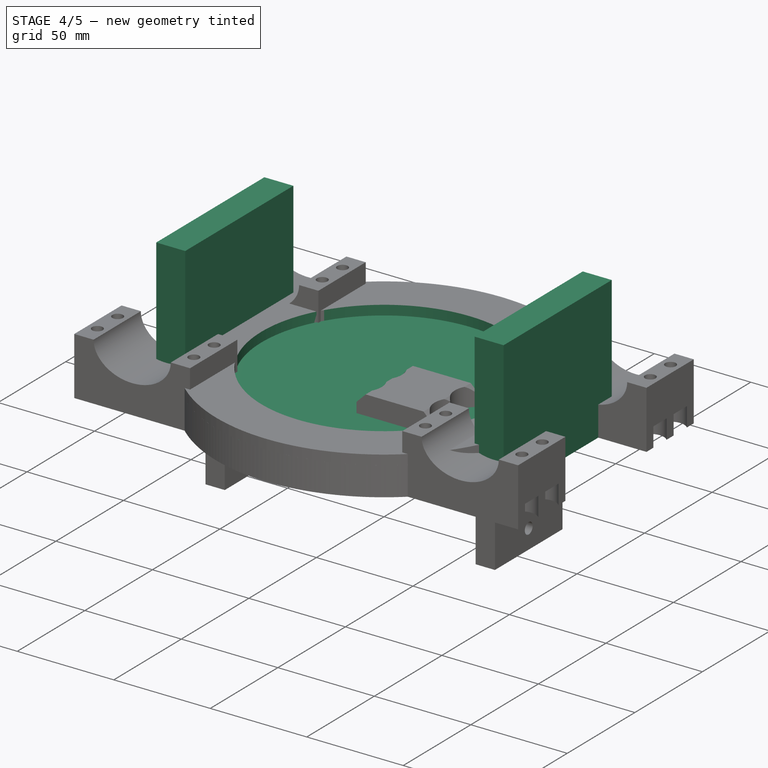
[diagram: stage 4 of 5 — iso view after this stage's code; geometry added in this stage tinted green]
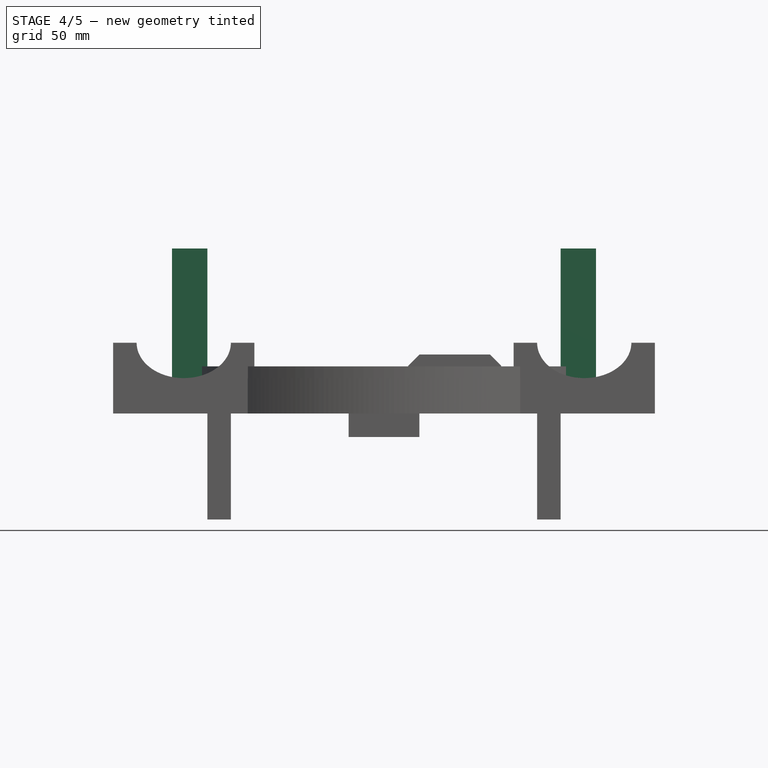
[diagram: stage 4 of 5 — front view after this stage's code; geometry added in this stage tinted green]
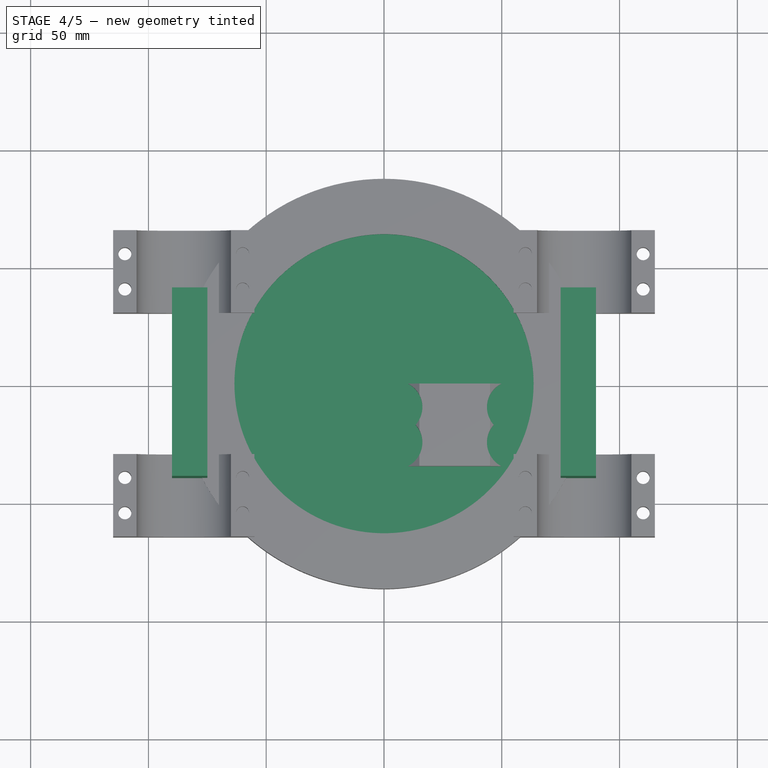
[diagram: stage 4 of 5 — top view after this stage's code; geometry added in this stage tinted green]
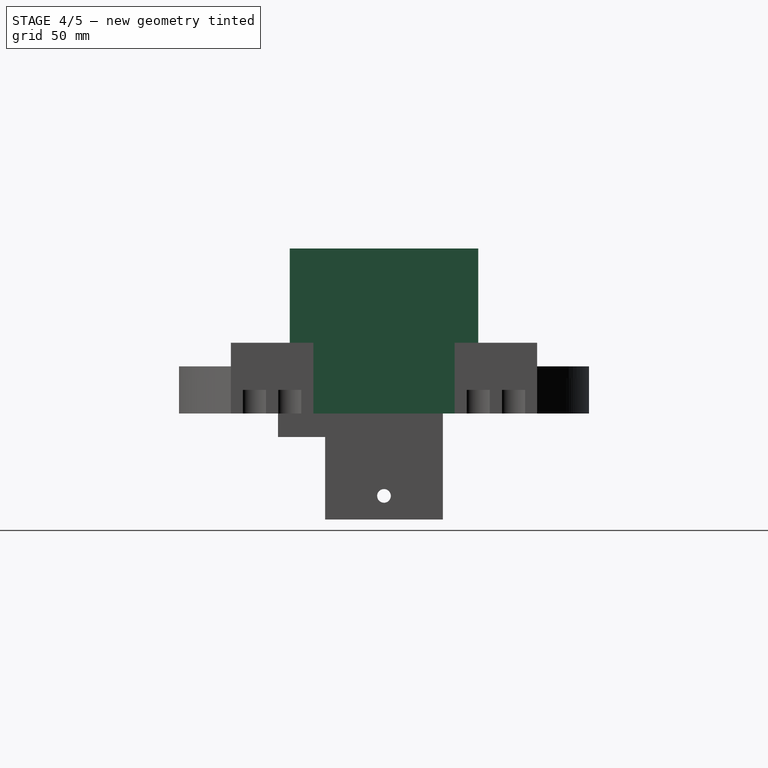
[diagram: stage 4 of 5 — right view after this stage's code; geometry added in this stage tinted green]
FEATURE [PartDesign::SubtractiveCylinder] Cylinder055  label="HeadlightSmallCutout"
  Angle = 360
  AttacherType = Attacher::AttachEngine3D
  BaseFeature = -> Cylinder054
  FirstAngle = 0
  Height = 20
  Radius = 63.5
  Refine = true
  SecondAngle = 0
  Suppressed = false
FEATURE [PartDesign::SubtractiveCylinder] Cylinder056
  Angle = 360
  AttacherType = Attacher::AttachEngine3D
  BaseFeature = -> Cylinder055
  FirstAngle = 0
  Height = 10
  Radius = 72
  Refine = true
  SecondAngle = 0
  Suppressed = false
FEATURE [PartDesign::AdditiveCylinder] Cylinder057
  Angle = 360
  AttacherType = Attacher::AttachEngine3D
  FirstAngle = 0
  Height = 15
  Radius = 87
  Refine = true
  SecondAngle = 0
  Suppressed = false
FEATURE [Sketcher::SketchObject] Sketch036  label="SupportsExtrusion"
  ArcFitTolerance = 1e-06
  AttachmentSupport = -> [XY_Plane056]
  FullyConstrained = false
  MakeInternals = false
  MapMode = 5
  sketch-geometry (12):
    g0: LineSegment StartX=170 StartY=50 StartZ=0 EndX=150 EndY=50 EndZ=0
    g1: LineSegment StartX=150 StartY=50 StartZ=0 EndX=150 EndY=-50 EndZ=0
    g2: LineSegment StartX=150 StartY=-50 StartZ=0 EndX=170 EndY=-50 EndZ=0
    g3: LineSegment StartX=170 StartY=-50 StartZ=0 EndX=170 EndY=50 EndZ=0
    g4: LineSegment StartX=90 StartY=40 StartZ=0 EndX=75 EndY=40 EndZ=0
    g5: LineSegment StartX=75 StartY=40 StartZ=0 EndX=75 EndY=-40 EndZ=0
    g6: LineSegment StartX=75 StartY=-40 StartZ=0 EndX=90 EndY=-40 EndZ=0
    g7: LineSegment StartX=90 StartY=-40 StartZ=0 EndX=90 EndY=40 EndZ=0
    g8: LineSegment StartX=-75 StartY=-40 StartZ=0 EndX=-75 EndY=40 EndZ=0
    g9: LineSegment StartX=-75 StartY=40 StartZ=0 EndX=-90 EndY=40 EndZ=0
    g10: LineSegment StartX=-90 StartY=40 StartZ=0 EndX=-90 EndY=-40 EndZ=0
    g11: LineSegment StartX=-90 StartY=-40 StartZ=0 EndX=-75 EndY=-40 EndZ=0
  constraints (24):
    c: Coincident(g0,g1)
    c: Coincident(g1,g2)
    c: Coincident(g2,g3)
    c: Coincident(g3,g0)
    c: Horizontal(g0)
    c: Horizontal(g2)
    c: Vertical(g1)
    c: Vertical(g3)
    c: Coincident(g4,g5)
    c: Coincident(g5,g6)
    c: Coincident(g6,g7)
    c: Coincident(g7,g4)
    c: Horizontal(g4)
    c: Horizontal(g6)
    c: Vertical(g5)
    c: Vertical(g7)
    c: Coincident(g8,g9)
    c: Coincident(g9,g10)
    c: Coincident(g10,g11)
    c: Coincident(g11,g8)
    c: Vertical(g8)
    c: Vertical(g10)
    c: Horizontal(g9)
    c: Horizontal(g11)
FEATURE [PartDesign::Pad] Pad020
  BaseFeature = -> Cylinder056
  Direction = (0,0,1)
  Length = 70
  Length2 = 10
  Profile = -> Sketch036
  ReferenceAxis = -> Sketch036 [N_Axis]
  Refine = true
  Suppressed = false
  Type = 0
FEATURE [Sketcher::SketchObject] Sketch048
  ArcFitTolerance = 1e-06
  AttachmentSupport = -> [XY_Plane058]
  FullyConstrained = false
  MakeInternals = false
  MapMode = 5
  sketch-geometry (1):
    g0: Circle CenterX=0 CenterY=-35 CenterZ=0 NormalX=0 NormalY=0 NormalZ=1 AngleXU=0 Radius=1.77387
  constraints (1):
    c: PointOnObject(g0,g-2)
FEATURE [PartDesign::Hole] Hole023
  BaseFeature = -> Pad023
  CustomThreadClearance = 0
  Depth = 429.101
  DepthType = 1
  Diameter = 4.2
  DrillForDepth = false
  DrillPoint = 1
  DrillPointAngle = 118
  HoleCutCountersinkAngle = 90
  HoleCutCustomValues = false
  HoleCutDepth = 0
  HoleCutDiameter = 6.1
  HoleCutType = 0
  ModelThread = false
  Profile = -> Sketch048
  Refine = true
  Suppressed = false
  Tapered = false
  TaperedAngle = 90
  ThreadClass = 0
  ThreadDepth = 429.101
  ThreadDepthType = 0
  ThreadDirection = 0
  ThreadFit = 0
  ThreadSize = 13
  ThreadType = 1
  Threaded = true
  UseCustomThreadClearance = false
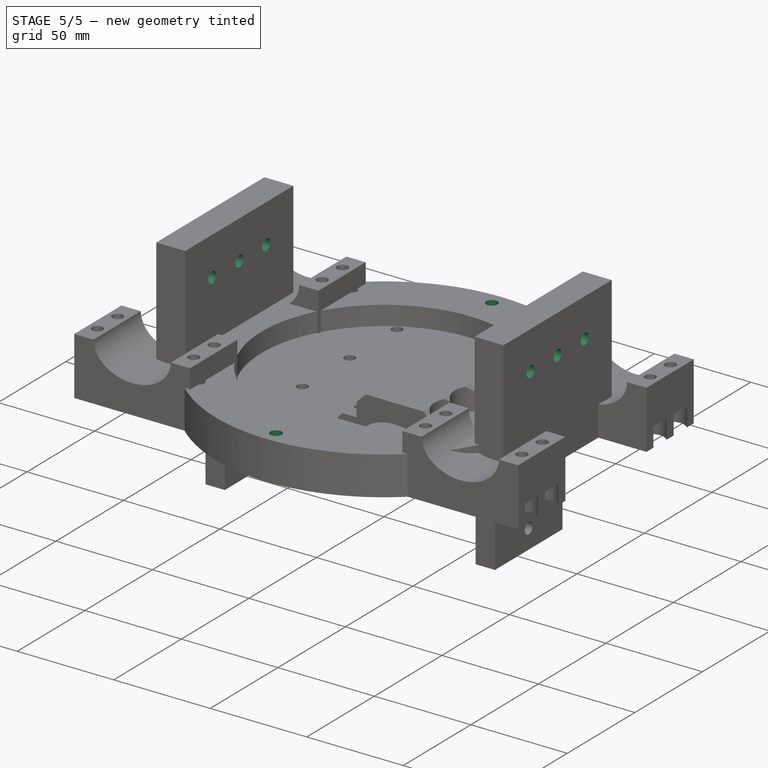
[diagram: stage 5 of 5 — iso view after this stage's code; geometry added in this stage tinted green]
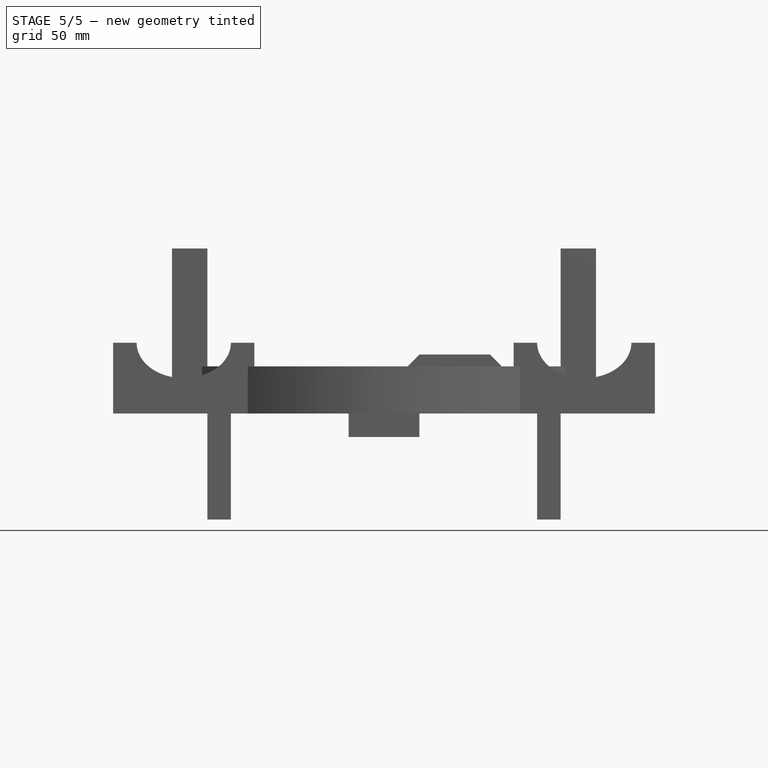
[diagram: stage 5 of 5 — front view after this stage's code; geometry added in this stage tinted green]
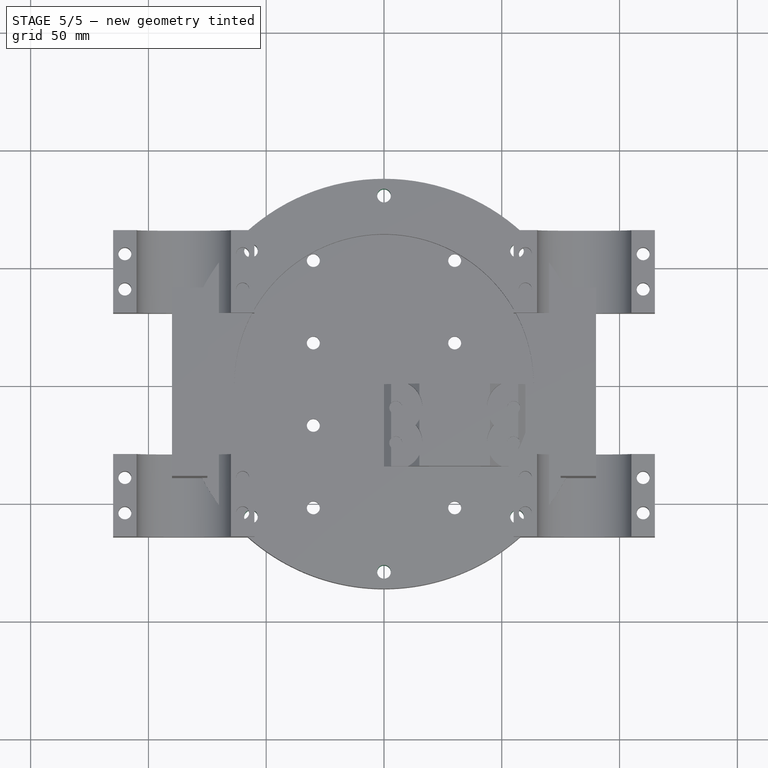
[diagram: stage 5 of 5 — top view after this stage's code; geometry added in this stage tinted green]
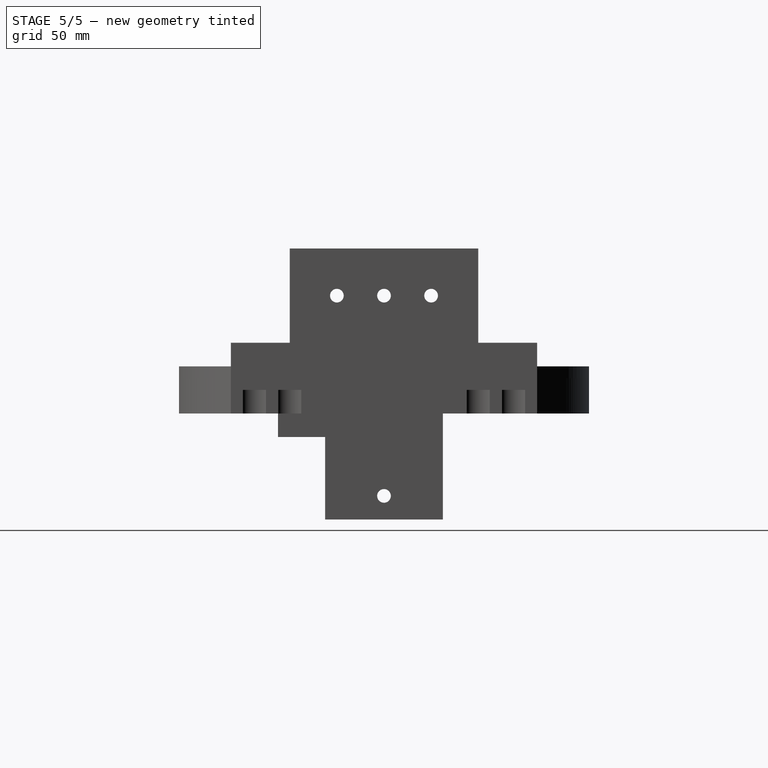
[diagram: stage 5 of 5 — right view after this stage's code; geometry added in this stage tinted green]
FEATURE [PartDesign::SubtractiveCylinder] Cylinder058
  Angle = 360
  AttacherType = Attacher::AttachEngine3D
  BaseFeature = -> Cylinder057
  FirstAngle = 0
  Height = 15
  Radius = 66.5
  Refine = true
  SecondAngle = 0
  Suppressed = false
FEATURE [Sketcher::SketchObject] Sketch037  label="HolePattern"
  ArcFitTolerance = 1e-06
  AttachmentSupport = -> [XY_Plane056]
  FullyConstrained = false
  MakeInternals = false
  MapMode = 5
  sketch-geometry (7):
    g0: Circle CenterX=0 CenterY=79.8619 CenterZ=0 NormalX=0 NormalY=0 NormalZ=1 AngleXU=0 Radius=2.37313
    g1: Circle CenterX=56.4709 CenterY=56.4709 CenterZ=0 NormalX=0 NormalY=0 NormalZ=1 AngleXU=0 Radius=2.37313
    g2: Circle CenterX=56.4709 CenterY=-56.4709 CenterZ=0 NormalX=0 NormalY=0 NormalZ=1 AngleXU=0 Radius=2.37313
    g3: Circle CenterX=0 CenterY=-79.8619 CenterZ=0 NormalX=0 NormalY=0 NormalZ=1 AngleXU=0 Radius=2.37313
    g4: Circle CenterX=-56.4709 CenterY=-56.4709 CenterZ=0 NormalX=0 NormalY=0 NormalZ=1 AngleXU=0 Radius=2.37313
    g5: Circle CenterX=-56.4709 CenterY=56.4709 CenterZ=0 NormalX=0 NormalY=0 NormalZ=1 AngleXU=0 Radius=2.37313
    g6: Circle CenterX=0 CenterY=79.8619 CenterZ=0 NormalX=0 NormalY=0 NormalZ=1 AngleXU=0 Radius=2.37313
  constraints (1):
    c: PointOnObject(g0,g-2)
FEATURE [PartDesign::Hole] Hole015
  BaseFeature = -> Pad020
  CustomThreadClearance = 0
  Depth = 25
  DepthType = 0
  Diameter = 5.8
  DrillForDepth = false
  DrillPoint = 1
  DrillPointAngle = 118
  HoleCutCountersinkAngle = 90
  HoleCutCustomValues = false
  HoleCutDepth = 0
  HoleCutDiameter = 6.1
  HoleCutType = 0
  ModelThread = false
  Profile = -> Sketch037
  Refine = true
  Reversed = true
  Suppressed = false
  Tapered = false
  TaperedAngle = 90
  ThreadClass = 0
  ThreadDepth = 25
  ThreadDepthType = 0
  ThreadDirection = 0
  ThreadFit = 2
  ThreadSize = 13
  ThreadType = 1
  Threaded = false
  UseCustomThreadClearance = false
FEATURE [Sketcher::SketchObject] Sketch039  label="HeadlightSupportHoles"
  ArcFitTolerance = 1e-06
  AttachmentSupport = -> [YZ_Plane055]
  FullyConstrained = false
  MakeInternals = false
  MapMode = 5
  Placement = pos=(0,0,0) rot=(0.57735,0.57735,0.57735;2.0944rad)
  sketch-geometry (3):
    g0: Circle CenterX=0 CenterY=50 CenterZ=0 NormalX=0 NormalY=0 NormalZ=1 AngleXU=0 Radius=2.39808
    g1: Circle CenterX=-20 CenterY=50 CenterZ=0 NormalX=0 NormalY=0 NormalZ=1 AngleXU=0 Radius=2.80175
    g2: Circle CenterX=20 CenterY=50 CenterZ=0 NormalX=0 NormalY=0 NormalZ=1 AngleXU=0 Radius=2.92969
  constraints (1):
    c: PointOnObject(g0,g-2)
FEATURE [PartDesign::Hole] Hole017
  BaseFeature = -> Hole015
  CustomThreadClearance = 0
  Depth = 981.52
  DepthType = 1
  Diameter = 5.8
  DrillForDepth = false
  DrillPoint = 1
  DrillPointAngle = 118
  HoleCutCountersinkAngle = 90
  HoleCutCustomValues = false
  HoleCutDepth = 0
  HoleCutDiameter = 6.1
  HoleCutType = 0
  ModelThread = false
  Profile = -> Sketch039
  Refine = true
  Suppressed = false
  Tapered = false
  TaperedAngle = 90
  ThreadClass = 0
  ThreadDepth = 981.52
  ThreadDepthType = 0
  ThreadDirection = 0
  ThreadFit = 2
  ThreadSize = 13
  ThreadType = 1
  Threaded = false
  UseCustomThreadClearance = false
FEATURE [Sketcher::SketchObject] Sketch040  label="HeadlightSupportHoles001"
  ArcFitTolerance = 1e-06
  AttachmentSupport = -> [YZ_Plane055]
  FullyConstrained = false
  MakeInternals = false
  MapMode = 5
  Placement = pos=(0,0,0) rot=(0.57735,0.57735,0.57735;2.0944rad)
  sketch-geometry (3):
    g0: Circle CenterX=0 CenterY=50 CenterZ=0 NormalX=0 NormalY=0 NormalZ=1 AngleXU=0 Radius=2.39808
    g1: Circle CenterX=-20 CenterY=50 CenterZ=0 NormalX=0 NormalY=0 NormalZ=1 AngleXU=0 Radius=2.80175
    g2: Circle CenterX=20 CenterY=50 CenterZ=0 NormalX=0 NormalY=0 NormalZ=1 AngleXU=0 Radius=2.92969
  constraints (1):
    c: PointOnObject(g0,g-2)
FEATURE [PartDesign::Hole] Hole018
  BaseFeature = -> Hole017
  CustomThreadClearance = 0
  Depth = 981.52
  DepthType = 1
  Diameter = 5.8
  DrillForDepth = false
  DrillPoint = 1
  DrillPointAngle = 118
  HoleCutCountersinkAngle = 90
  HoleCutCustomValues = false
  HoleCutDepth = 0
  HoleCutDiameter = 6.1
  HoleCutType = 0
  ModelThread = false
  Profile = -> Sketch040
  Refine = true
  Reversed = true
  Suppressed = false
  Tapered = false
  TaperedAngle = 90
  ThreadClass = 0
  ThreadDepth = 981.52
  ThreadDepthType = 0
  ThreadDirection = 0
  ThreadFit = 2
  ThreadSize = 13
  ThreadType = 1
  Threaded = false
  UseCustomThreadClearance = false
FEATURE [PartDesign::Body] Body054  label="HeadlightHolderP1"
  AllowCompound = false
  Group = -> [Cylinder054,Cylinder055,Cylinder056,Sketch036,Pad020,Sketch037,Hole015,Sketch039,Hole017,Sketch040,Hole018]
  Origin = -> Origin055
  Placement = pos=(0,0,-85) rot=(0,0,1;0rad)
  Tip = -> Hole018
FEATURE [Sketcher::SketchObject] Sketch041  label="HolePattern001"
  ArcFitTolerance = 1e-06
  AttachmentSupport = -> [XY_Plane057]
  FullyConstrained = false
  MakeInternals = false
  MapMode = 5
  sketch-geometry (7):
    g0: Circle CenterX=0 CenterY=79.8619 CenterZ=0 NormalX=0 NormalY=0 NormalZ=1 AngleXU=0 Radius=2.37313
    g1: Circle CenterX=56.4709 CenterY=56.4709 CenterZ=0 NormalX=0 NormalY=0 NormalZ=1 AngleXU=0 Radius=2.37313
    g2: Circle CenterX=56.4709 CenterY=-56.4709 CenterZ=0 NormalX=0 NormalY=0 NormalZ=1 AngleXU=0 Radius=2.37313
    g3: Circle CenterX=0 CenterY=-79.8619 CenterZ=0 NormalX=0 NormalY=0 NormalZ=1 AngleXU=0 Radius=2.37313
    g4: Circle CenterX=-56.4709 CenterY=-56.4709 CenterZ=0 NormalX=0 NormalY=0 NormalZ=1 AngleXU=0 Radius=2.37313
    g5: Circle CenterX=-56.4709 CenterY=56.4709 CenterZ=0 NormalX=0 NormalY=0 NormalZ=1 AngleXU=0 Radius=2.37313
    g6: Circle CenterX=0 CenterY=79.8619 CenterZ=0 NormalX=0 NormalY=0 NormalZ=1 AngleXU=0 Radius=2.37313
  constraints (1):
    c: PointOnObject(g0,g-2)
FEATURE [PartDesign::Hole] Hole019
  BaseFeature = -> Cylinder058
  CustomThreadClearance = 0
  Depth = 25
  DepthType = 0
  Diameter = 5.8
  DrillForDepth = false
  DrillPoint = 1
  DrillPointAngle = 118
  HoleCutCountersinkAngle = 90
  HoleCutCustomValues = false
  HoleCutDepth = 5.4
  HoleCutDiameter = 10
  HoleCutType = 10
  ModelThread = false
  Profile = -> Sketch041
  Refine = true
  Reversed = true
  Suppressed = false
  Tapered = false
  TaperedAngle = 90
  ThreadClass = 0
  ThreadDepth = 25
  ThreadDepthType = 0
  ThreadDirection = 0
  ThreadFit = 2
  ThreadSize = 13
  ThreadType = 1
  Threaded = false
  UseCustomThreadClearance = false
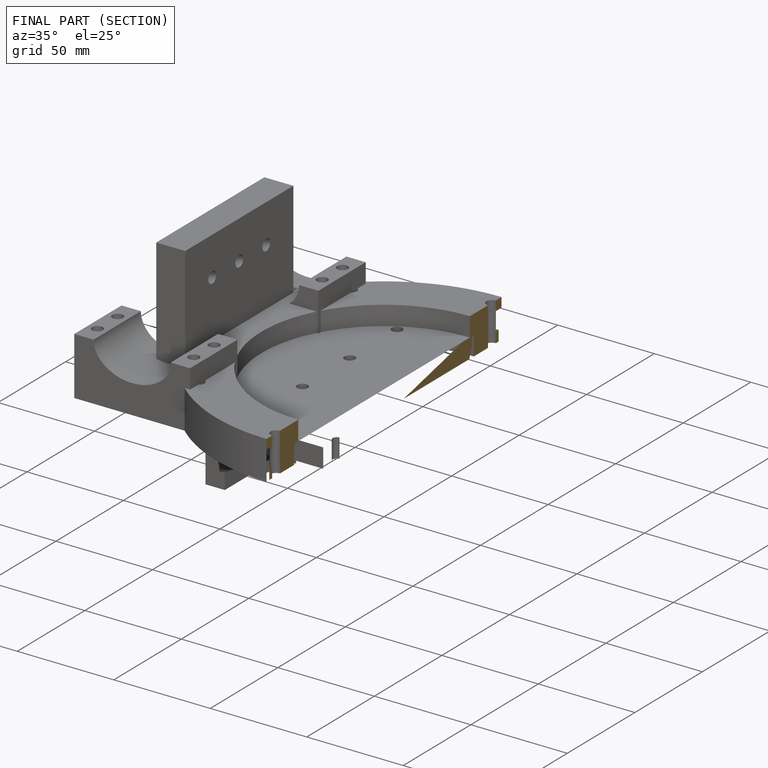
[diagram: finished part — half-section view (interior)]
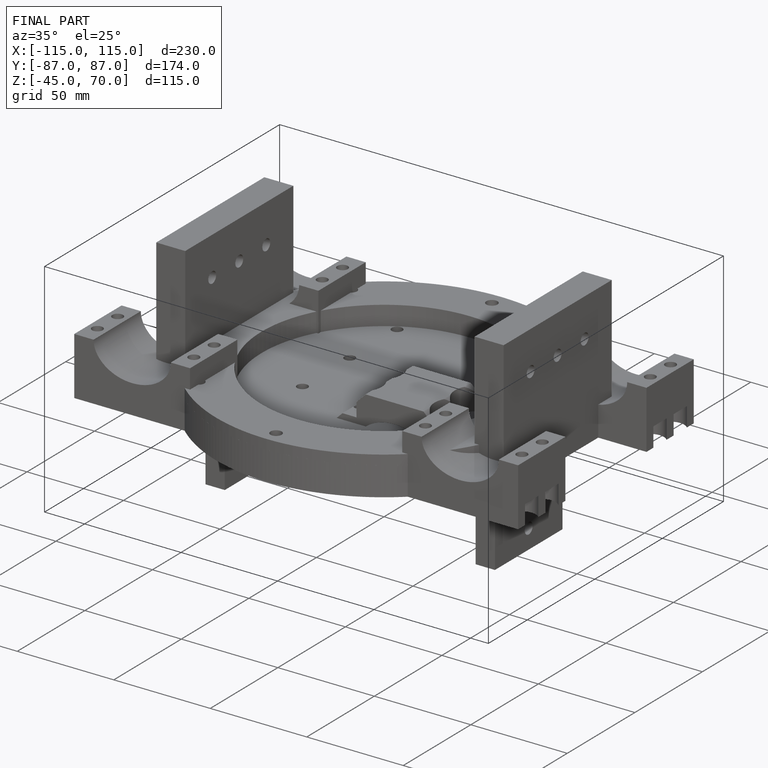
[diagram: finished part — iso view with bounding-box wireframe]
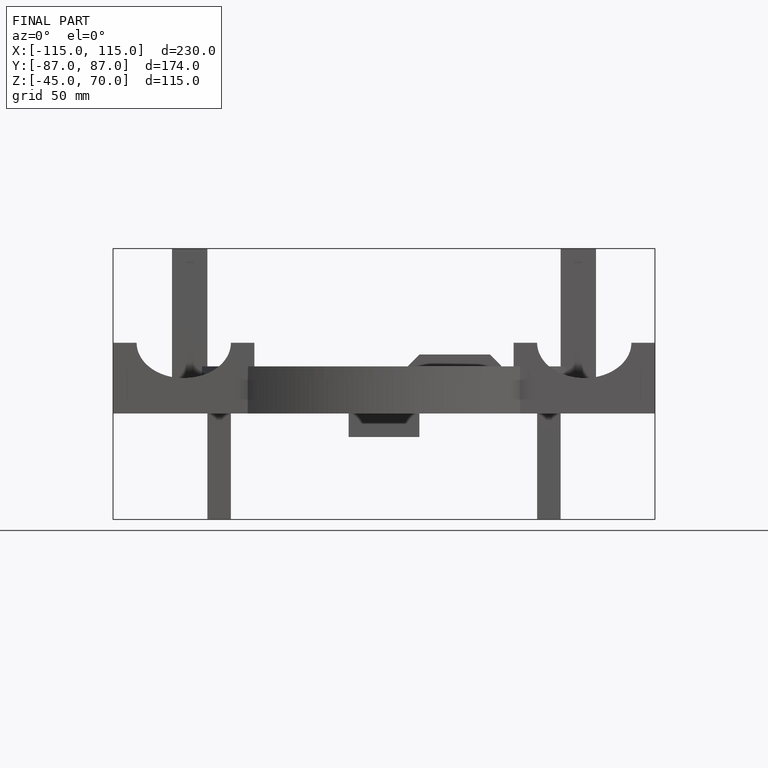
[diagram: finished part — front view with bounding-box wireframe]
